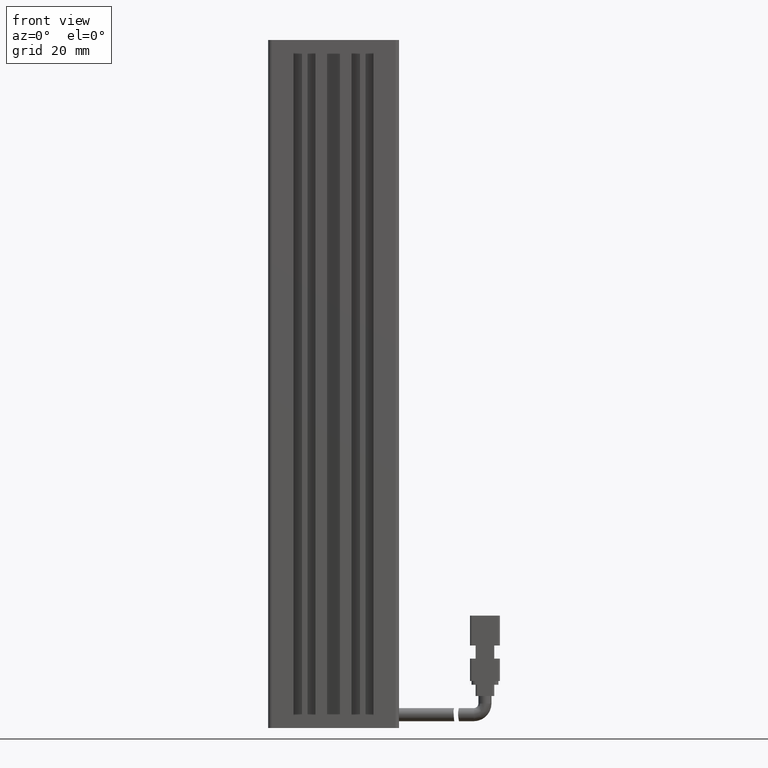
[diagram: clean part render]
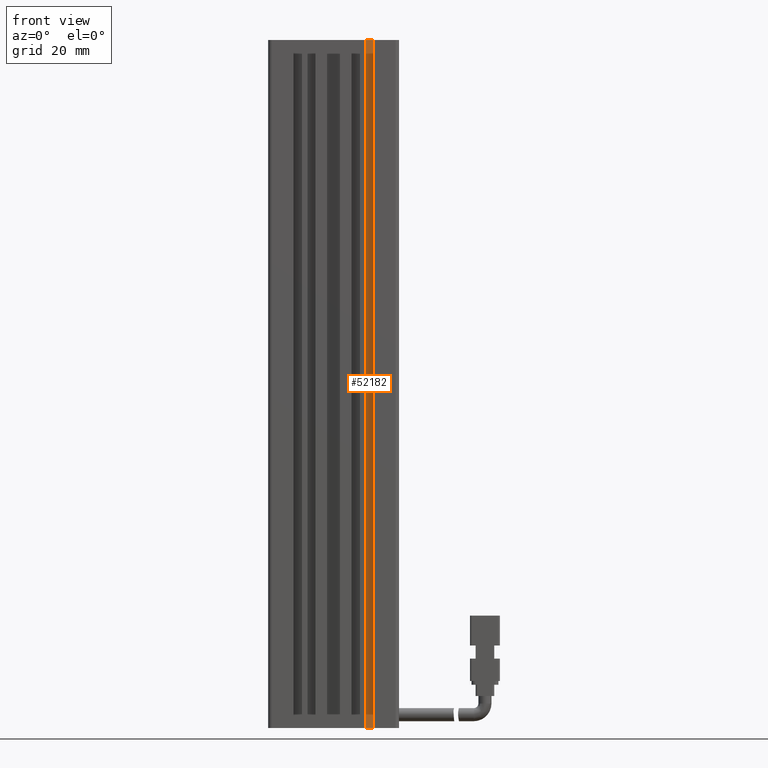
[diagram: same view with one face highlighted and labeled with its STEP entity id]
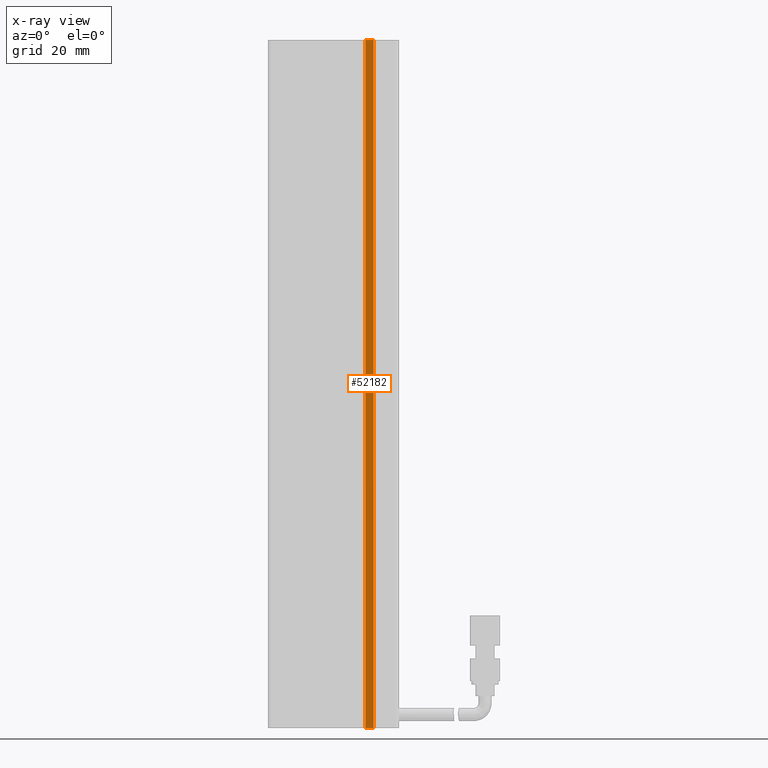
[diagram: x-ray of the same camera — body ghosted, the highlighted face saturated]
A machine part, front view. The second image highlights one B-rep face of the part: STEP entity #52182.
The next image is the same camera in x-ray: the body ghosted, the highlighted face saturated — about 0% of this face is hidden behind the body in this view.
In plain terms, the highlighted planar face has unit normal (0, -1, 0).
Its self-contained STEP definition (entity closure, byte-faithful):
#414 = CARTESIAN_POINT ( 'NONE',  ( 49.42537974683541800, 16.49073232304836600, -23.00000000000000700 ) ) ;
#719 = VERTEX_POINT ( 'NONE', #33196 ) ;
#1047 = VECTOR ( 'NONE', #40696, 1000.000000000000000 ) ;
#2913 = LINE ( 'NONE', #11222, #1047 ) ;
#5221 = CARTESIAN_POINT ( 'NONE',  ( 51.62537974683542100, 16.49073232304836600, -22.99999999999999300 ) ) ;
#11222 = CARTESIAN_POINT ( 'NONE',  ( 51.62537974683541400, 16.49073232304836600, -23.00000000000000700 ) ) ;
#11868 = VERTEX_POINT ( 'NONE', #5221 ) ;
#18149 = VERTEX_POINT ( 'NONE', #31770 ) ;
#18676 = ORIENTED_EDGE ( 'NONE', *, *, #63392, .T. ) ;
#22313 = DIRECTION ( 'NONE',  ( 0.0000000000000000000, -0.0000000000000000000, -1.000000000000000000 ) ) ;
#23160 = ORIENTED_EDGE ( 'NONE', *, *, #72452, .F. ) ;
#27901 = DIRECTION ( 'NONE',  ( 0.0000000000000000000, -1.000000000000000000, 0.0000000000000000000 ) ) ;
#28728 = LINE ( 'NONE', #34506, #32555 ) ;
#31770 = CARTESIAN_POINT ( 'NONE',  ( 51.62537974683542100, 16.49073232304836600, -207.0000000000000300 ) ) ;
#32555 = VECTOR ( 'NONE', #40073, 1000.000000000000000 ) ;
#33196 = CARTESIAN_POINT ( 'NONE',  ( 49.42537974683541800, 16.49073232304836600, -22.99999999999999300 ) ) ;
#34506 = CARTESIAN_POINT ( 'NONE',  ( 40.92537974683542500, 16.49073232304836600, -23.00000000000000700 ) ) ;
#37031 = EDGE_LOOP ( 'NONE', ( #23160, #18676, #43489, #39626 ) ) ;
#37695 = DIRECTION ( 'NONE',  ( 1.000000000000000000, 0.0000000000000000000, 0.0000000000000000000 ) ) ;
#39459 = EDGE_CURVE ( 'NONE', #11868, #18149, #2913, .T. ) ;
#39526 = LINE ( 'NONE', #56434, #56542 ) ;
#39626 = ORIENTED_EDGE ( 'NONE', *, *, #39459, .F. ) ;
#40073 = DIRECTION ( 'NONE',  ( 1.000000000000000000, 0.0000000000000000000, 0.0000000000000000000 ) ) ;
#40696 = DIRECTION ( 'NONE',  ( -0.0000000000000000000, -0.0000000000000000000, -1.000000000000000000 ) ) ;
#43489 = ORIENTED_EDGE ( 'NONE', *, *, #44187, .T. ) ;
#44037 = VECTOR ( 'NONE', #74037, 1000.000000000000000 ) ;
#44187 = EDGE_CURVE ( 'NONE', #57639, #18149, #39526, .T. ) ;
#51346 = FACE_OUTER_BOUND ( 'NONE', #37031, .T. ) ;
#52182 = ADVANCED_FACE ( 'NONE', ( #51346 ), #70658, .T. ) ;
#52251 = CARTESIAN_POINT ( 'NONE',  ( 40.92537974683542500, 16.49073232304836600, -23.00000000000000700 ) ) ;
#56434 = CARTESIAN_POINT ( 'NONE',  ( 40.92537974683542500, 16.49073232304836600, -207.0000000000000300 ) ) ;
#56542 = VECTOR ( 'NONE', #37695, 1000.000000000000000 ) ;
#57639 = VERTEX_POINT ( 'NONE', #65726 ) ;
#60189 = LINE ( 'NONE', #414, #44037 ) ;
#63392 = EDGE_CURVE ( 'NONE', #719, #57639, #60189, .T. ) ;
#65726 = CARTESIAN_POINT ( 'NONE',  ( 49.42537974683541800, 16.49073232304836600, -207.0000000000000300 ) ) ;
#70658 = PLANE ( 'NONE',  #72073 ) ;
#72073 = AXIS2_PLACEMENT_3D ( 'NONE', #52251, #27901, #22313 ) ;
#72452 = EDGE_CURVE ( 'NONE', #719, #11868, #28728, .T. ) ;
#74037 = DIRECTION ( 'NONE',  ( 0.0000000000000000000, -0.0000000000000000000, -1.000000000000000000 ) ) ;